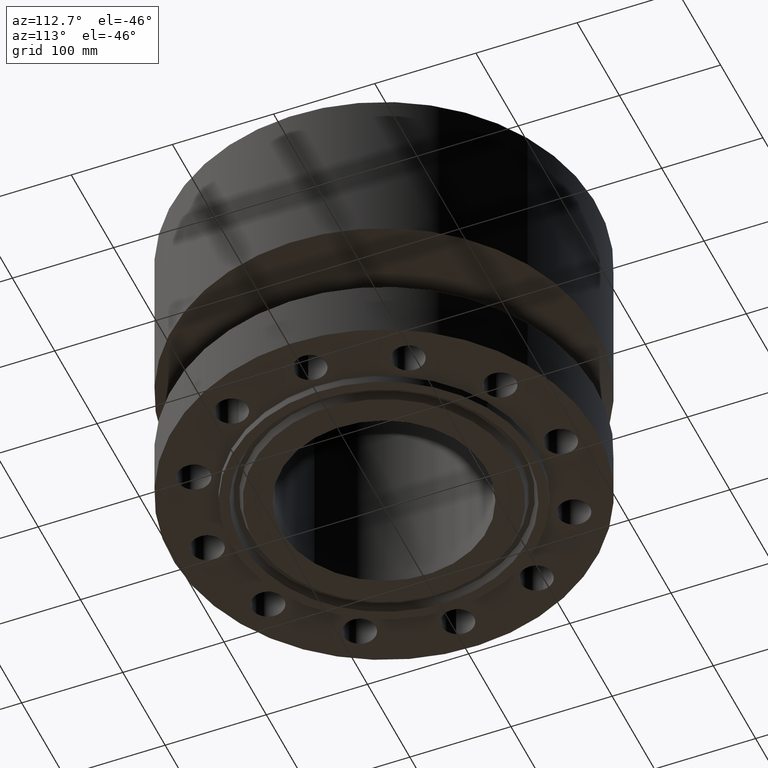
[diagram: clean part render]
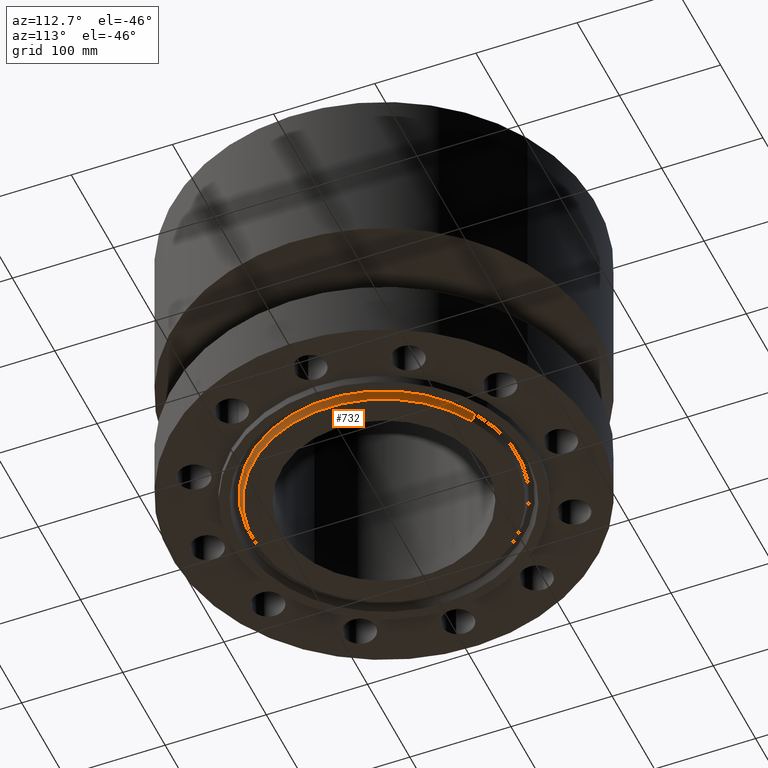
[diagram: same view with one face highlighted and labeled with its STEP entity id]
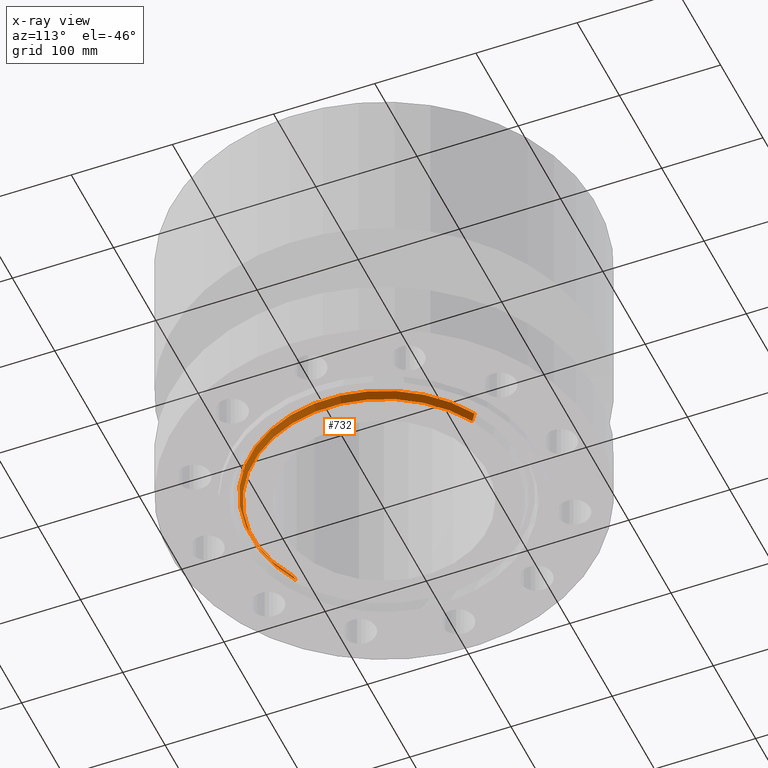
[diagram: x-ray of the same camera — body ghosted, the highlighted face saturated]
A machine part, auxiliary view. The second image highlights one B-rep face of the part: STEP entity #732.
The next image is the same camera in x-ray: the body ghosted, the highlighted face saturated — about 0% of this face is hidden behind the body in this view.
In plain terms, the highlighted conical surface has half-angle 23 deg.
Its self-contained STEP definition (entity closure, byte-faithful):
#678=AXIS2_PLACEMENT_3D('Circle Axis2P3D',#676,#677,$) ;
#693=AXIS2_PLACEMENT_3D('Cone Axis2P3D',#690,#691,#692) ;
#723=AXIS2_PLACEMENT_3D('Circle Axis2P3D',#721,#722,$) ;
#671=CARTESIAN_POINT('Vertex',(-2.43452288504,-4.4563642493,-0.313000000001)) ;
#673=CARTESIAN_POINT('Vertex',(2.43452288504,4.4563642493,-0.313000000001)) ;
#676=CARTESIAN_POINT('Axis2P3D Location',(0.,0.,-0.313000000001)) ;
#690=CARTESIAN_POINT('Axis2P3D Location',(0.,0.,-0.313000000001)) ;
#695=CARTESIAN_POINT('Line Origine',(-2.46444944684,-4.51114445322,-0.165943667509)) ;
#699=CARTESIAN_POINT('Vertex',(-2.49437600864,-4.56592465714,-0.0188873350169)) ;
#706=CARTESIAN_POINT('Vertex',(2.49437600864,4.56592465714,-0.0188873350169)) ;
#709=CARTESIAN_POINT('Line Origine',(2.46444944684,4.51114445322,-0.165943667509)) ;
#721=CARTESIAN_POINT('Axis2P3D Location',(0.,0.,-0.0188873350169)) ;
#677=DIRECTION('Axis2P3D Direction',(0.,0.,-0.0393700787402)) ;
#691=DIRECTION('Axis2P3D Direction',(-0.,-0.,0.0393700787402)) ;
#692=DIRECTION('Axis2P3D XDirection',(-0.0188750212049,-0.0345504945626,0.)) ;
#696=DIRECTION('Vector Direction',(-0.00737505833565,-0.0134999537303,0.0362403485611)) ;
#710=DIRECTION('Vector Direction',(0.00737505833565,0.0134999537303,0.0362403485611)) ;
#722=DIRECTION('Axis2P3D Direction',(-0.,0.,0.0393700787402)) ;
#697=VECTOR('Line Direction',#696,0.0393700787402) ;
#711=VECTOR('Line Direction',#710,0.0393700787402) ;
#727=ORIENTED_EDGE('',*,*,#680,.F.) ;
#728=ORIENTED_EDGE('',*,*,#713,.T.) ;
#729=ORIENTED_EDGE('',*,*,#725,.T.) ;
#730=ORIENTED_EDGE('',*,*,#701,.F.) ;
#732=ADVANCED_FACE('PartBody',(#731),#694,.T.) ;
#679=CIRCLE('generated circle',#678,5.07800000002) ;
#724=CIRCLE('generated circle',#723,5.20284341943) ;
#694=CONICAL_SURFACE('Cone',#693,5.07800000002,0.401425727959) ;
#680=EDGE_CURVE('',#674,#672,#679,.T.) ;
#701=EDGE_CURVE('',#672,#700,#698,.T.) ;
#713=EDGE_CURVE('',#674,#707,#712,.T.) ;
#725=EDGE_CURVE('',#707,#700,#724,.F.) ;
#726=EDGE_LOOP('',(#727,#728,#729,#730)) ;
#731=FACE_OUTER_BOUND('',#726,.T.) ;
#698=LINE('Line',#695,#697) ;
#712=LINE('Line',#709,#711) ;
#672=VERTEX_POINT('',#671) ;
#674=VERTEX_POINT('',#673) ;
#700=VERTEX_POINT('',#699) ;
#707=VERTEX_POINT('',#706) ;